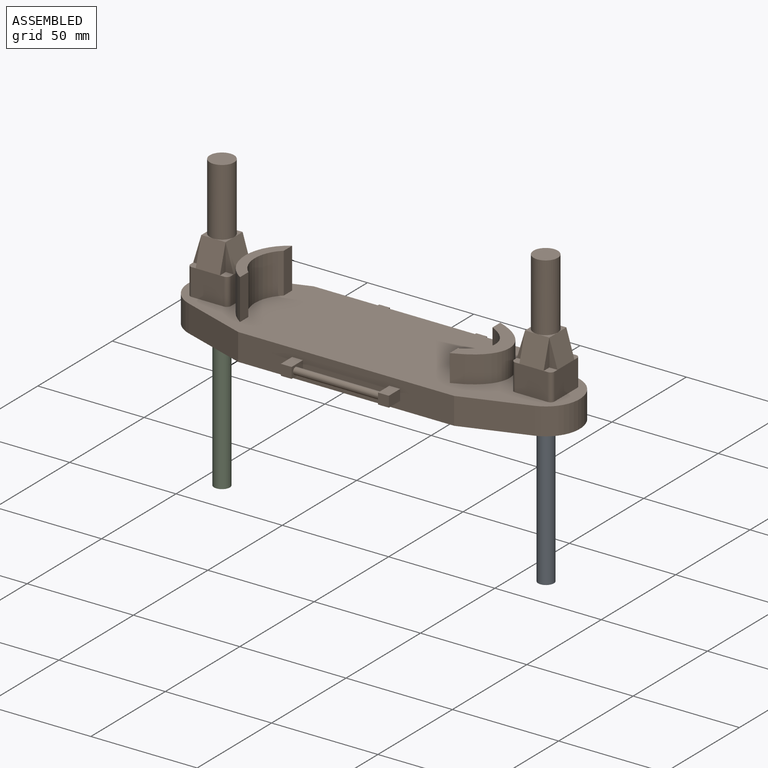
[diagram: assembled view]
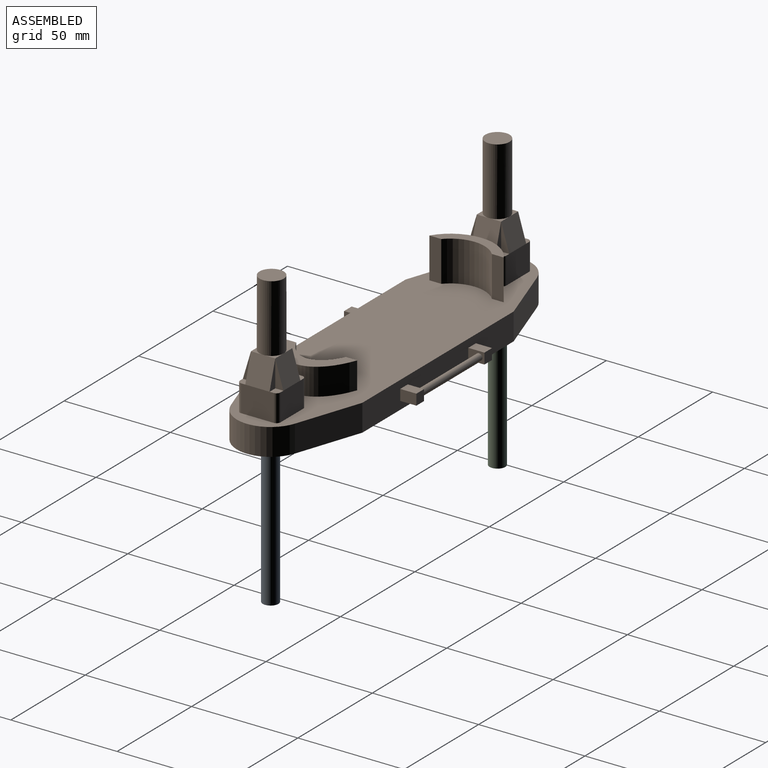
[diagram: assembled view, second angle]
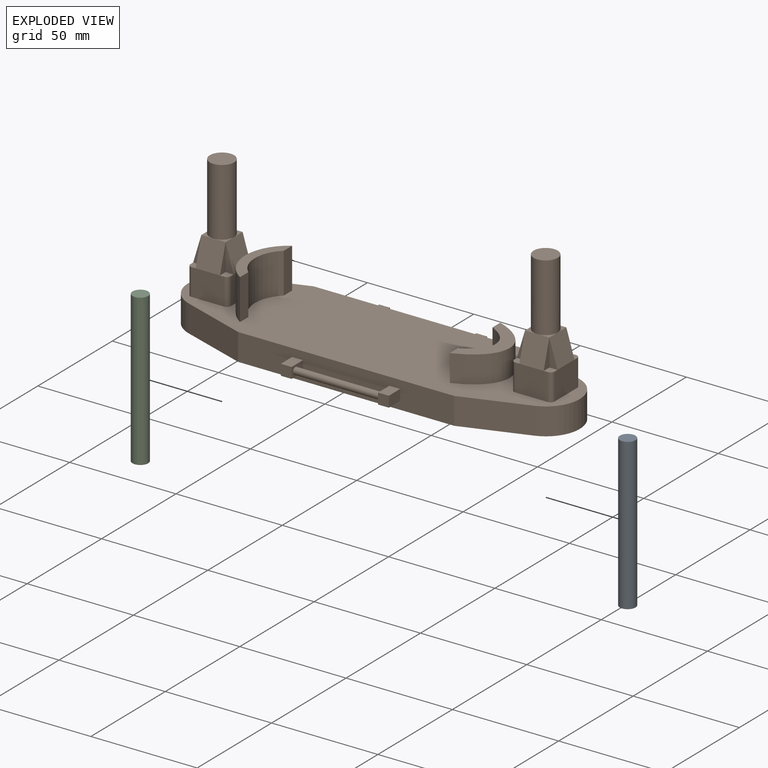
[diagram: exploded view]
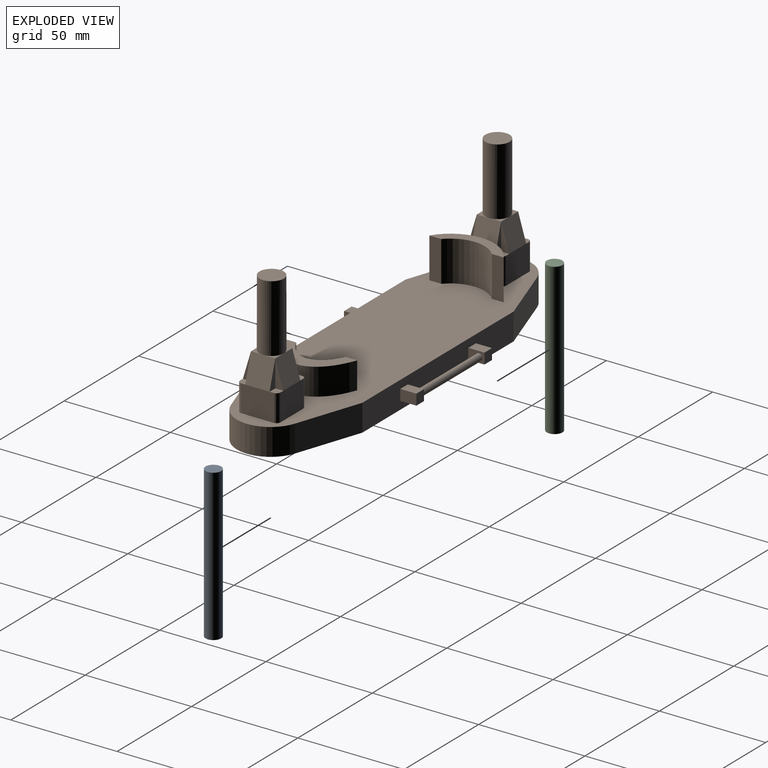
[diagram: exploded view, second angle]
ASSEMBLY  parts=3 mates=2
PART A: 3 faces, bbox 7.4x7.4x71.1 mm
  f0: cylinder r=3.68mm len=71.12mm, axis (0,0,-1), area 1645.8mm2, adj f1,f2
  f1: plane 7.37x7.37mm, normal (0,0,1), area 42.6mm2, adj f0
  f2: plane 7.37x7.37mm, normal (0,0,-1), area 42.6mm2, adj f0
PART B: 106 faces, bbox 184.2x66x69.9 mm
  f0: plane 184.15x50.8mm, normal (0,0,1), area 6995.9mm2, adj f1,f8,f9,f10,f11,f12,f13,f14
  f1: plane 101.6x12.7mm, normal (0,-1,0), area 1238.7mm2, adj f0,f10,f11,f15,f73,f74,f75,f76
  f2: plane 5.72x5.72mm, normal (0,0,1), area 7mm2, adj f50,f57,f60
  f3: plane 5.72x5.72mm, normal (0,0,1), area 7mm2, adj f56,f57,f60
  f4: plane 5.72x5.72mm, normal (0,0,1), area 7mm2, adj f51,f56,f60
  f5: plane 5.72x5.72mm, normal (0,0,1), area 7mm2, adj f53,f54,f58
  f6: plane 5.72x5.72mm, normal (0,0,1), area 7mm2, adj f52,f53,f58
  f7: plane 5.72x5.72mm, normal (0,0,1), area 7mm2, adj f52,f55,f58
  f8: plane 30.51x12.7mm, normal (-0.32,0.95,0), area 409.2mm2, adj f0,f9,f14,f15
  f9: cylinder r=15.88mm len=30.06mm, axis (0,0,-1), area 501.3mm2, adj f0,f8,f10,f15
  f10: plane 30.51x12.7mm, normal (-0.32,-0.95,0), area 409.2mm2, adj f0,f1,f9,f15
  f11: plane 30.51x12.7mm, normal (0.32,-0.95,0), area 409.2mm2, adj f0,f1,f12,f15
  f12: cylinder r=15.88mm len=30.06mm, axis (0,0,-1), area 501.3mm2, adj f0,f11,f13,f15
  f13: plane 30.51x12.7mm, normal (0.32,0.95,0), area 409.2mm2, adj f0,f12,f14,f15
  f14: plane 101.6x12.7mm, normal (0,1,0), area 1238.7mm2, adj f0,f8,f13,f15,f62,f63,f64,f65
  f15: plane 184.15x50.8mm, normal (0,0,-1), area 8010.1mm2, adj f1,f8,f9,f10,f11,f12,f13,f14
  f16: plane 12.7x3.81mm, normal (1,0,0), area 24.2mm2, adj f27,f43,f53
  f17: plane 15.24x12.7mm, normal (0,1,0), area 193.5mm2, adj f0,f42,f43,f53,f87,f88
  f18: plane 12.7x3.81mm, normal (-1,0,0), area 24.2mm2, adj f19,f42,f53
  f19: plane 12.7x3.81mm, normal (0,1,0), area 24.2mm2, adj f18,f42,f52
  f20: plane 15.24x12.7mm, normal (-1,0,0), area 193.5mm2, adj f0,f42,f45,f52,f87,f89
  f21: plane 12.7x3.81mm, normal (0,-1,0), area 24.2mm2, adj f22,f45,f52
  f22: plane 12.7x3.81mm, normal (-1,0,0), area 24.2mm2, adj f21,f45,f55
  f23: plane 15.24x12.7mm, normal (0,-1,0), area 193.5mm2, adj f0,f44,f45,f55,f89,f90
  f24: plane 12.7x3.81mm, normal (1,0,0), area 24.2mm2, adj f25,f44,f55
  f25: plane 12.7x3.81mm, normal (0,-1,0), area 24.2mm2, adj f24,f44,f54
  f26: plane 15.24x12.7mm, normal (1,0,0), area 193.5mm2, adj f0,f43,f44,f54,f88,f90
  f27: plane 12.7x3.81mm, normal (0,1,0), area 24.2mm2, adj f16,f43,f54
  f28: plane 5.72x5.72mm, normal (0,0,1), area 7mm2, adj f54,f55,f58
  f29: plane 12.7x3.81mm, normal (1,0,0), area 24.2mm2, adj f40,f46,f57
  f30: plane 15.24x12.7mm, normal (0,1,0), area 193.5mm2, adj f0,f46,f47,f57,f84,f85
  f31: plane 12.7x3.81mm, normal (-1,0,0), area 24.2mm2, adj f32,f47,f57
  f32: plane 12.7x3.81mm, normal (0,1,0), area 24.2mm2, adj f31,f47,f56
  f33: plane 15.24x12.7mm, normal (-1,0,0), area 193.5mm2, adj f0,f47,f49,f56,f83,f84
  f34: plane 12.7x3.81mm, normal (0,-1,0), area 24.2mm2, adj f35,f49,f56
  f35: plane 12.7x3.81mm, normal (-1,0,0), area 24.2mm2, adj f34,f49,f51
  f36: plane 15.24x12.7mm, normal (0,-1,0), area 193.5mm2, adj f0,f48,f49,f51,f83,f86
  f37: plane 12.7x3.81mm, normal (1,0,0), area 24.2mm2, adj f38,f48,f51
  f38: plane 12.7x3.81mm, normal (0,-1,0), area 24.2mm2, adj f37,f48,f50
  f39: plane 15.24x12.7mm, normal (1,0,0), area 193.5mm2, adj f0,f46,f48,f50,f85,f86
  f40: plane 12.7x3.81mm, normal (0,1,0), area 24.2mm2, adj f29,f46,f50
  f41: plane 5.72x5.72mm, normal (0,0,1), area 7mm2, adj f50,f51,f60
  f42: plane 3.81x3.81mm, normal (0,0,1), area 13.7mm2, adj f17,f18,f19,f20,f87
  f43: plane 3.81x3.81mm, normal (0,0,1), area 13.7mm2, adj f16,f17,f26,f27,f88
  f44: plane 3.81x3.81mm, normal (0,0,1), area 13.7mm2, adj f23,f24,f25,f26,f90
  f45: plane 3.81x3.81mm, normal (0,0,1), area 13.7mm2, adj f20,f21,f22,f23,f89
  f46: plane 3.81x3.81mm, normal (0,0,1), area 13.7mm2, adj f29,f30,f39,f40,f85
  f47: plane 3.81x3.81mm, normal (0,0,1), area 13.7mm2, adj f30,f31,f32,f33,f84
  f48: plane 3.81x3.81mm, normal (0,0,1), area 13.7mm2, adj f36,f37,f38,f39,f86
  f49: plane 3.81x3.81mm, normal (0,0,1), area 13.7mm2, adj f33,f34,f35,f36,f83
  f50: plane 12.7x11.43mm, normal (0.96,0,0.29), area 151.6mm2, adj f2,f38,f39,f40,f41
  f51: plane 12.7x11.43mm, normal (0,-0.96,0.29), area 151.6mm2, adj f4,f35,f36,f37,f41
  f52: plane 12.7x11.43mm, normal (-0.96,0,0.29), area 151.6mm2, adj f6,f7,f19,f20,f21
  f53: plane 12.7x11.43mm, normal (0,0.96,0.29), area 151.6mm2, adj f5,f6,f16,f17,f18
  f54: plane 12.7x11.43mm, normal (0.96,0,0.29), area 151.6mm2, adj f5,f25,f26,f27,f28
  f55: plane 12.7x11.43mm, normal (0,-0.96,0.29), area 151.6mm2, adj f7,f22,f23,f24,f28
  f56: plane 12.7x11.43mm, normal (-0.96,0,0.29), area 151.6mm2, adj f3,f4,f32,f33,f34
  f57: plane 12.7x11.43mm, normal (0,0.96,0.29), area 151.6mm2, adj f2,f3,f29,f30,f31
  f58: cylinder r=5.71mm len=31.75mm, axis (0,0,-1), area 1140.1mm2, adj f5,f6,f7,f28,f59
  f59: plane 11.43x11.43mm, normal (0,0,1), area 102.6mm2, adj f58
  f60: cylinder r=5.71mm len=31.75mm, axis (0,0,-1), area 1140.1mm2, adj f2,f3,f4,f41,f61
  f61: plane 11.43x11.43mm, normal (0,0,1), area 102.6mm2, adj f60
  f62: plane 7.62x5.08mm, normal (1,0,0), area 30.8mm2, adj f14,f63,f65,f66,f72
  f63: plane 7.62x5.08mm, normal (0,0,-1), area 38.7mm2, adj f14,f62,f64,f66
  f64: plane 7.62x5.08mm, normal (-1,0,0), area 38.7mm2, adj f14,f63,f65,f66
  f65: plane 7.62x5.08mm, normal (0,0,1), area 38.7mm2, adj f14,f62,f64,f66
  f66: plane 5.08x5.08mm, normal (0,1,0), area 25.8mm2, adj f62,f63,f64,f65
  f67: plane 7.62x5.08mm, normal (1,0,0), area 38.7mm2, adj f14,f68,f70,f71
  f68: plane 7.62x5.08mm, normal (0,0,-1), area 38.7mm2, adj f14,f67,f69,f71
  f69: plane 7.62x5.08mm, normal (-1,0,0), area 30.8mm2, adj f14,f68,f70,f71,f72
  f70: plane 7.62x5.08mm, normal (0,0,1), area 38.7mm2, adj f14,f67,f69,f71
  f71: plane 5.08x5.08mm, normal (0,1,0), area 25.8mm2, adj f67,f68,f69,f70
  f72: cylinder r=1.59mm len=40.64mm, axis (-1,0,0), area 405.4mm2, adj f62,f69
  f73: plane 7.62x5.08mm, normal (0,0,-1), area 38.7mm2, adj f1,f74,f76,f77
  f74: plane 7.62x5.08mm, normal (1,0,0), area 30.8mm2, adj f1,f73,f75,f77,f91
  f75: plane 7.62x5.08mm, normal (0,0,1), area 38.7mm2, adj f1,f74,f76,f77
  f76: plane 7.62x5.08mm, normal (-1,0,0), area 38.7mm2, adj f1,f73,f75,f77
  f77: plane 5.08x5.08mm, normal (0,-1,0), area 25.8mm2, adj f73,f74,f75,f76
  f78: plane 7.62x5.08mm, normal (0,0,-1), area 38.7mm2, adj f1,f79,f81,f82
  f79: plane 7.62x5.08mm, normal (1,0,0), area 38.7mm2, adj f1,f78,f80,f82
  f80: plane 7.62x5.08mm, normal (0,0,1), area 38.7mm2, adj f1,f79,f81,f82
  f81: plane 7.62x5.08mm, normal (-1,0,0), area 30.8mm2, adj f1,f78,f80,f82,f91
  f82: plane 5.08x5.08mm, normal (0,-1,0), area 25.8mm2, adj f78,f79,f80,f81
  f83: cylinder r=1.91mm len=12.7mm, axis (0,0,1), area 38mm2, adj f0,f33,f36,f49
  f84: cylinder r=1.91mm len=12.7mm, axis (0,0,-1), area 38mm2, adj f0,f30,f33,f47
  f85: cylinder r=1.91mm len=12.7mm, axis (0,0,1), area 38mm2, adj f0,f30,f39,f46
  f86: cylinder r=1.91mm len=12.7mm, axis (0,0,-1), area 38mm2, adj f0,f36,f39,f48
  f87: cylinder r=1.91mm len=12.7mm, axis (0,0,-1), area 38mm2, adj f0,f17,f20,f42
  f88: cylinder r=1.91mm len=12.7mm, axis (0,0,1), area 38mm2, adj f0,f17,f26,f43
  f89: cylinder r=1.91mm len=12.7mm, axis (0,0,1), area 38mm2, adj f0,f20,f23,f45
  f90: cylinder r=1.91mm len=12.7mm, axis (0,0,-1), area 38mm2, adj f0,f23,f26,f44
  f91: cylinder r=1.59mm len=40.64mm, axis (-1,0,0), area 405.4mm2, adj f74,f81
  f92: cone r=0mm half-angle=59deg, axis (0,0,-1), area 53.2mm2, adj f93
  f93: cylinder r=3.81mm len=63.5mm, axis (0,0,-1), area 1520.1mm2, adj f15,f92
  f94: cone r=0mm half-angle=59deg, axis (0,0,-1), area 53.2mm2, adj f95
  f95: cylinder r=3.81mm len=63.5mm, axis (0,0,-1), area 1520.1mm2, adj f15,f94
  f96: cylinder r=16.05mm len=23.79mm, axis (0,0,-1), area 510.6mm2, adj f0,f97,f99,f100
  f97: plane 19.05x5.6mm, normal (1,0,0), area 106.7mm2, adj f0,f96,f98,f100
  f98: cylinder r=20.55mm len=34.99mm, axis (0,0,-1), area 797.7mm2, adj f0,f97,f99,f100
  f99: plane 19.05x5.6mm, normal (1,0,0), area 106.7mm2, adj f0,f96,f98,f100
  f100: plane 34.99x9.78mm, normal (0,0,1), area 154.8mm2, adj f96,f97,f98,f99
  f101: plane 12.7x5.24mm, normal (-1,0,0), area 66.6mm2, adj f0,f102,f104,f105
  f102: extruded ~23.38x12.7mm, area 405.7mm2, adj f0,f101,f103,f105
  f103: plane 12.7x5.24mm, normal (-1,0,0), area 66.6mm2, adj f0,f102,f104,f105
  f104: extruded ~33.87x16.24mm, area 633mm2, adj f0,f101,f103,f105
  f105: plane 33.87x16.24mm, normal (0,0,1), area 231mm2, adj f101,f102,f103,f104
PART C: same geometry as A
PLACE A t=(97.69,37.38,-55.65)mm
PLACE B t=(-29.01,-24.03,13.25)mm fixed
PLACE C rot(axis=(0,0,-1),90deg) t=(-72.72,-76.87,-55.65)mm
MATE slider A.f0 <-> B.f12  axis (0,0,1) through (31.56,-10.74,15.47)mm
MATE slider C.f0 <-> B.f9  axis (0,0,1) through (-120.84,-10.74,15.47)mm
